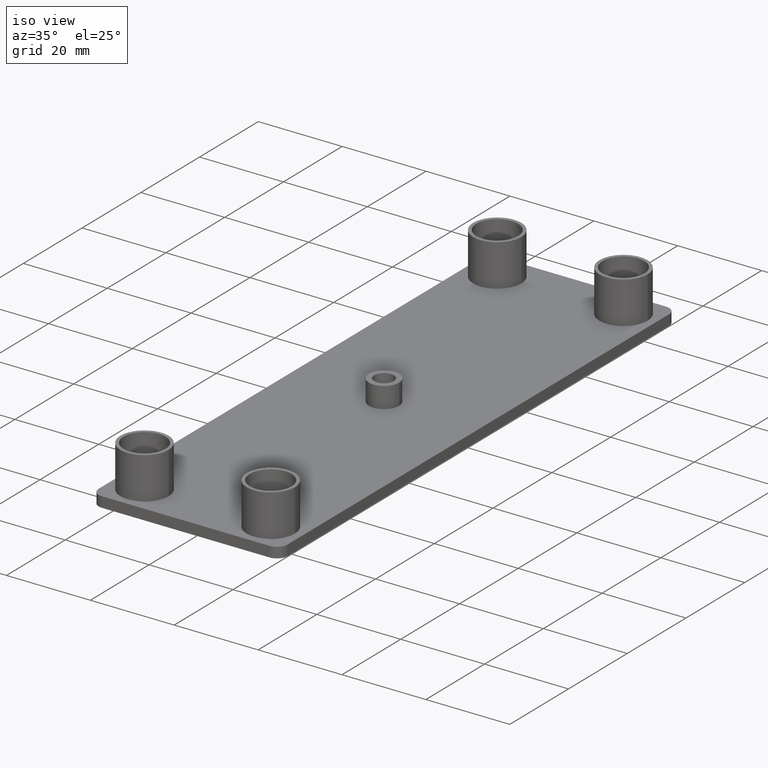
[diagram: clean part render]
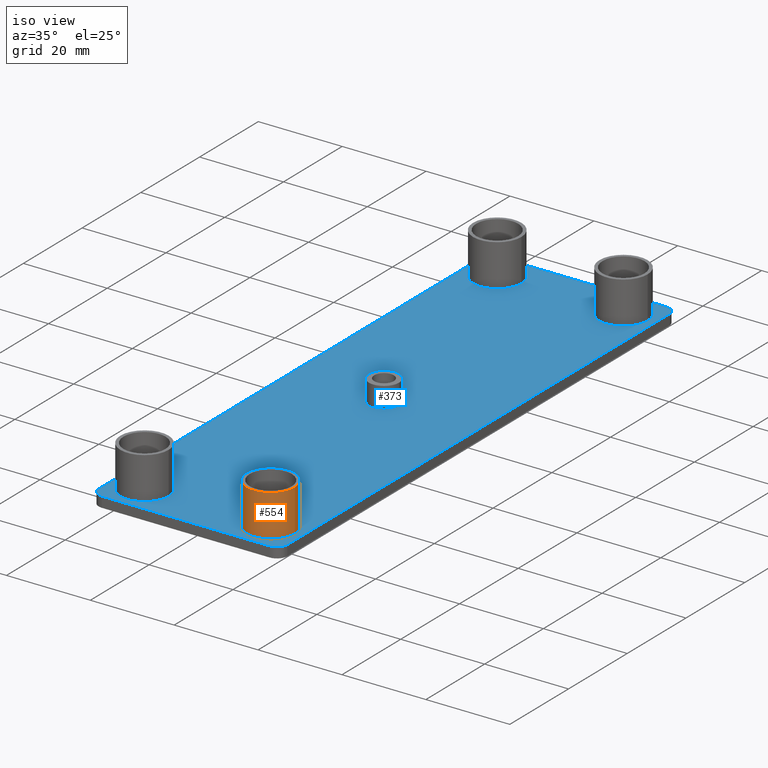
[diagram: same view with the hole feature highlighted: cylindrical wall and planar end face, labeled with their STEP entity ids]
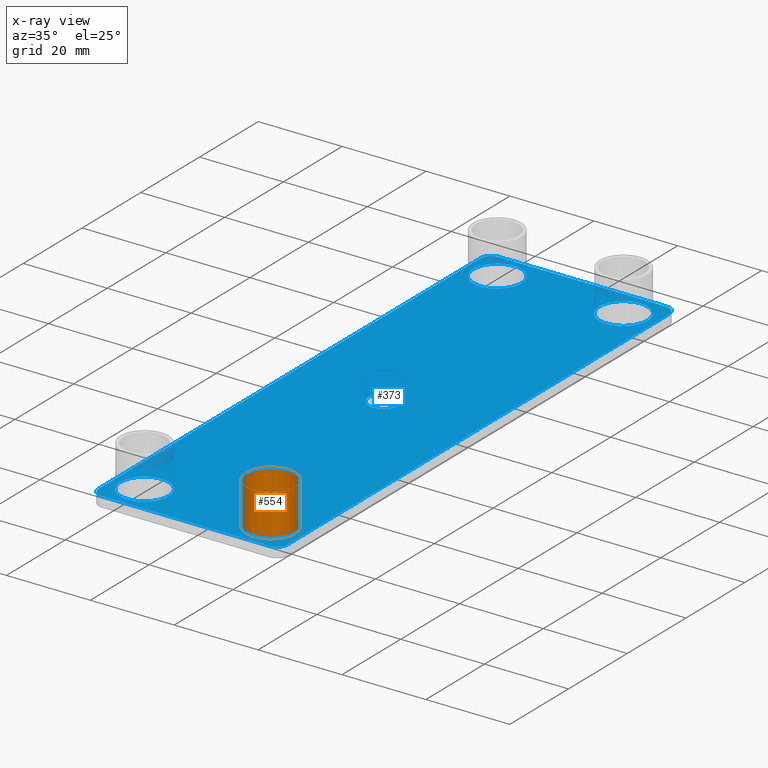
[diagram: x-ray of the same camera — body ghosted, the hole faces saturated]
A machine part, iso view. The highlighted faces form one hole feature of diameter 11.5 mm: the cylindrical wall (entity #554, orange) and its adjacent planar end face (entity #373, blue) — they share a circular edge in the B-rep.
The next image is the same camera in x-ray (body ghosted, the hole faces saturated) — the bore reads through the body.
Wall:
#273=CARTESIAN_POINT('',(9.300001333297395,-60.050044499759906,0.0));
#274=VERTEX_POINT('',#273);
#275=CARTESIAN_POINT('',(20.800001333251430,-60.050044499759906,0.0));
#276=VERTEX_POINT('',#275);
#277=CARTESIAN_POINT('',(15.050001333274395,-60.050044499759906,0.0));
#278=DIRECTION('',(0.0,0.0,1.0));
#279=DIRECTION('',(1.0,0.0,0.0));
#280=AXIS2_PLACEMENT_3D('',#277,#278,#279);
#281=CIRCLE('',#280,5.749999999977001);
#282=EDGE_CURVE('',#274,#276,#281,.T.);
#284=CARTESIAN_POINT('',(15.050001333274395,-60.050044499759906,0.0));
#285=DIRECTION('',(0.0,0.0,1.0));
#286=DIRECTION('',(1.0,0.0,0.0));
#287=AXIS2_PLACEMENT_3D('',#284,#285,#286);
#288=CIRCLE('',#287,5.749999999977001);
#289=EDGE_CURVE('',#276,#274,#288,.T.);
#520=CARTESIAN_POINT('',(15.050001333274395,-60.050044499759906,0.0));
#521=DIRECTION('',(0.0,0.0,1.0));
#522=DIRECTION('',(1.0,0.0,0.0));
#523=AXIS2_PLACEMENT_3D('',#520,#521,#522);
#524=CYLINDRICAL_SURFACE('',#523,5.749999999977001);
#525=CARTESIAN_POINT('',(9.300001333297395,-60.050044499759906,10.0));
#526=VERTEX_POINT('',#525);
#527=CARTESIAN_POINT('',(20.800001333251430,-60.050044499759906,10.0));
#528=VERTEX_POINT('',#527);
#529=CARTESIAN_POINT('',(15.050001333274395,-60.050044499759906,10.0));
#530=DIRECTION('',(0.0,0.0,1.0));
#531=DIRECTION('',(1.0,0.0,0.0));
#532=AXIS2_PLACEMENT_3D('',#529,#530,#531);
#533=CIRCLE('',#532,5.749999999977001);
#534=EDGE_CURVE('',#526,#528,#533,.T.);
#535=ORIENTED_EDGE('',*,*,#534,.F.);
#536=CARTESIAN_POINT('',(15.050001333274395,-60.050044499759906,10.0));
#537=DIRECTION('',(0.0,0.0,1.0));
#538=DIRECTION('',(1.0,0.0,0.0));
#539=AXIS2_PLACEMENT_3D('',#536,#537,#538);
#540=CIRCLE('',#539,5.749999999977001);
#541=EDGE_CURVE('',#528,#526,#540,.T.);
#542=ORIENTED_EDGE('',*,*,#541,.F.);
#543=CARTESIAN_POINT('',(20.800001333251430,-60.050044499759906,0.0));
#544=DIRECTION('',(0.0,0.0,1.0));
#545=VECTOR('',#544,10.0);
#546=LINE('',#543,#545);
#547=EDGE_CURVE('',#276,#528,#546,.T.);
#548=ORIENTED_EDGE('',*,*,#547,.F.);
#549=ORIENTED_EDGE('',*,*,#289,.T.);
#550=ORIENTED_EDGE('',*,*,#282,.T.);
#551=ORIENTED_EDGE('',*,*,#547,.T.);
#552=EDGE_LOOP('',(#535,#542,#548,#549,#550,#551));
#553=FACE_OUTER_BOUND('',#552,.T.);
#554=ADVANCED_FACE('',(#553),#524,.T.);
End face:
#7=CARTESIAN_POINT('',(-19.999953666585498,-67.499999499730166,0.0));
#8=VERTEX_POINT('',#7);
#25=CARTESIAN_POINT('',(20.000000333254548,-67.500000499730277,0.0));
#26=VERTEX_POINT('',#25);
#33=CARTESIAN_POINT('',(-19.999953666585498,-67.499999499730166,0.0));
#34=DIRECTION('',(1.000000000000000,-0.000000025000029,0.0));
#35=VECTOR('',#34,39.999953999840038);
#36=LINE('',#33,#35);
#37=EDGE_CURVE('',#8,#26,#36,.T.);
#57=CARTESIAN_POINT('',(22.500000333244770,-65.000000499740054,0.0));
#58=VERTEX_POINT('',#57);
#65=CARTESIAN_POINT('',(20.000000333254548,-65.000000499740281,0.0));
#66=DIRECTION('',(0.0,0.0,1.0));
#67=DIRECTION('',(1.0,0.0,0.0));
#68=AXIS2_PLACEMENT_3D('',#65,#66,#67);
#69=CIRCLE('',#68,2.499999999990000);
#70=EDGE_CURVE('',#26,#58,#69,.T.);
#89=CARTESIAN_POINT('',(22.499999666575377,65.000000499740054,0.0));
#90=VERTEX_POINT('',#89);
#97=CARTESIAN_POINT('',(22.500000333244696,-65.000000499739969,0.0));
#98=DIRECTION('',(-5.128225E-009,1.0,0.0));
#99=VECTOR('',#98,130.000000999480020);
#100=LINE('',#97,#99);
#101=EDGE_CURVE('',#58,#90,#100,.T.);
#121=CARTESIAN_POINT('',(19.999999666585381,67.500000499730049,0.0));
#122=VERTEX_POINT('',#121);
#129=CARTESIAN_POINT('',(19.999999666585381,65.000000499740054,0.0));
#130=DIRECTION('',(0.0,0.0,1.0));
#131=DIRECTION('',(1.0,0.0,0.0));
#132=AXIS2_PLACEMENT_3D('',#129,#130,#131);
#133=CIRCLE('',#132,2.499999999990000);
#134=EDGE_CURVE('',#90,#122,#133,.T.);
#153=CARTESIAN_POINT('',(-19.999956333254659,67.500000499730049,0.0));
#154=VERTEX_POINT('',#153);
#161=CARTESIAN_POINT('',(19.999999666585381,67.500000499730049,0.0));
#162=DIRECTION('',(-1.0,0.0,0.0));
#163=VECTOR('',#162,39.999955999840019);
#164=LINE('',#161,#163);
#165=EDGE_CURVE('',#122,#154,#164,.T.);
#185=CARTESIAN_POINT('',(-22.499956333244654,65.000000499740054,0.0));
#186=VERTEX_POINT('',#185);
#193=CARTESIAN_POINT('',(-19.999956333254659,65.000000499740054,0.0));
#194=DIRECTION('',(0.0,0.0,1.0));
#195=DIRECTION('',(1.0,0.0,0.0));
#196=AXIS2_PLACEMENT_3D('',#193,#194,#195);
#197=CIRCLE('',#196,2.499999999990000);
#198=EDGE_CURVE('',#154,#186,#197,.T.);
#217=CARTESIAN_POINT('',(-22.499953666575493,-64.999999499740170,0.0));
#218=VERTEX_POINT('',#217);
#225=CARTESIAN_POINT('',(-22.499956333244654,65.000000499740054,0.0));
#226=DIRECTION('',(0.000000020512841,-1.000000000000000,0.0));
#227=VECTOR('',#226,129.999999999480050);
#228=LINE('',#225,#227);
#229=EDGE_CURVE('',#186,#218,#228,.T.);
#248=CARTESIAN_POINT('',(-19.999953666585498,-64.999999499740170,0.0));
#249=DIRECTION('',(0.0,0.0,1.0));
#250=DIRECTION('',(1.0,0.0,0.0));
#251=AXIS2_PLACEMENT_3D('',#248,#249,#250);
#252=CIRCLE('',#251,2.499999999990000);
#253=EDGE_CURVE('',#218,#8,#252,.T.);
#258=CARTESIAN_POINT('',(-26.999956730030135,-81.000005329483884,0.0));
#259=DIRECTION('',(0.0,0.0,1.0));
#260=DIRECTION('',(1.0,0.0,0.0));
#261=AXIS2_PLACEMENT_3D('',#258,#259,#260);
#262=PLANE('',#261);
#263=ORIENTED_EDGE('',*,*,#37,.T.);
#264=ORIENTED_EDGE('',*,*,#70,.T.);
#265=ORIENTED_EDGE('',*,*,#101,.T.);
#266=ORIENTED_EDGE('',*,*,#134,.T.);
#267=ORIENTED_EDGE('',*,*,#165,.T.);
#268=ORIENTED_EDGE('',*,*,#198,.T.);
#269=ORIENTED_EDGE('',*,*,#229,.T.);
#270=ORIENTED_EDGE('',*,*,#253,.T.);
#271=EDGE_LOOP('',(#263,#264,#265,#266,#267,#268,#269,#270));
#272=FACE_OUTER_BOUND('',#271,.T.);
#273=CARTESIAN_POINT('',(9.300001333297395,-60.050044499759906,0.0));
#274=VERTEX_POINT('',#273);
#275=CARTESIAN_POINT('',(20.800001333251430,-60.050044499759906,0.0));
#276=VERTEX_POINT('',#275);
#277=CARTESIAN_POINT('',(15.050001333274395,-60.050044499759906,0.0));
#278=DIRECTION('',(0.0,0.0,1.0));
#279=DIRECTION('',(1.0,0.0,0.0));
#280=AXIS2_PLACEMENT_3D('',#277,#278,#279);
#281=CIRCLE('',#280,5.749999999977001);
#282=EDGE_CURVE('',#274,#276,#281,.T.);
#283=ORIENTED_EDGE('',*,*,#282,.F.);
#284=CARTESIAN_POINT('',(15.050001333274395,-60.050044499759906,0.0));
#285=DIRECTION('',(0.0,0.0,1.0));
#286=DIRECTION('',(1.0,0.0,0.0));
#287=AXIS2_PLACEMENT_3D('',#284,#285,#286);
#288=CIRCLE('',#287,5.749999999977001);
#289=EDGE_CURVE('',#276,#274,#288,.T.);
#290=ORIENTED_EDGE('',*,*,#289,.F.);
#291=EDGE_LOOP('',(#283,#290));
#292=FACE_BOUND('',#291,.T.);
#293=CARTESIAN_POINT('',(-20.799998666582233,-60.050044499759906,0.0));
#294=VERTEX_POINT('',#293);
#295=CARTESIAN_POINT('',(-9.299998666628198,-60.050044499759906,0.0));
#296=VERTEX_POINT('',#295);
#297=CARTESIAN_POINT('',(-15.049998666605234,-60.050044499759906,0.0));
#298=DIRECTION('',(0.0,0.0,1.0));
#299=DIRECTION('',(1.0,0.0,0.0));
#300=AXIS2_PLACEMENT_3D('',#297,#298,#299);
#301=CIRCLE('',#300,5.749999999977001);
#302=EDGE_CURVE('',#294,#296,#301,.T.);
#303=ORIENTED_EDGE('',*,*,#302,.F.);
#304=CARTESIAN_POINT('',(-15.049998666605234,-60.050044499759906,0.0));
#305=DIRECTION('',(0.0,0.0,1.0));
#306=DIRECTION('',(1.0,0.0,0.0));
#307=AXIS2_PLACEMENT_3D('',#304,#305,#306);
#308=CIRCLE('',#307,5.749999999977001);
#309=EDGE_CURVE('',#296,#294,#308,.T.);
#310=ORIENTED_EDGE('',*,*,#309,.F.);
#311=EDGE_LOOP('',(#303,#310));
#312=FACE_BOUND('',#311,.T.);
#313=CARTESIAN_POINT('',(9.299999666628118,60.050000499759790,0.0));
#314=VERTEX_POINT('',#313);
#315=CARTESIAN_POINT('',(20.799999666582153,60.050000499759790,0.0));
#316=VERTEX_POINT('',#315);
#317=CARTESIAN_POINT('',(15.049999666605117,60.050000499759790,0.0));
#318=DIRECTION('',(0.0,0.0,1.0));
#319=DIRECTION('',(1.0,0.0,0.0));
#320=AXIS2_PLACEMENT_3D('',#317,#318,#319);
#321=CIRCLE('',#320,5.749999999977001);
#322=EDGE_CURVE('',#314,#316,#321,.T.);
#323=ORIENTED_EDGE('',*,*,#322,.F.);
#324=CARTESIAN_POINT('',(15.049999666605117,60.050000499759790,0.0));
#325=DIRECTION('',(0.0,0.0,1.0));
#326=DIRECTION('',(1.0,0.0,0.0));
#327=AXIS2_PLACEMENT_3D('',#324,#325,#326);
#328=CIRCLE('',#327,5.749999999977001);
#329=EDGE_CURVE('',#316,#314,#328,.T.);
#330=ORIENTED_EDGE('',*,*,#329,.F.);
#331=EDGE_LOOP('',(#323,#330));
#332=FACE_BOUND('',#331,.T.);
#333=CARTESIAN_POINT('',(-20.800000333251511,60.050045499759563,0.0));
#334=VERTEX_POINT('',#333);
#335=CARTESIAN_POINT('',(-9.300000333297476,60.050045499759563,0.0));
#336=VERTEX_POINT('',#335);
#337=CARTESIAN_POINT('',(-15.050000333274511,60.050045499759563,0.0));
#338=DIRECTION('',(0.0,0.0,1.0));
#339=DIRECTION('',(1.0,0.0,0.0));
#340=AXIS2_PLACEMENT_3D('',#337,#338,#339);
#341=CIRCLE('',#340,5.749999999977001);
#342=EDGE_CURVE('',#334,#336,#341,.T.);
#343=ORIENTED_EDGE('',*,*,#342,.F.);
#344=CARTESIAN_POINT('',(-15.050000333274511,60.050045499759563,0.0));
#345=DIRECTION('',(0.0,0.0,1.0));
#346=DIRECTION('',(1.0,0.0,0.0));
#347=AXIS2_PLACEMENT_3D('',#344,#345,#346);
#348=CIRCLE('',#347,5.749999999977001);
#349=EDGE_CURVE('',#336,#334,#348,.T.);
#350=ORIENTED_EDGE('',*,*,#349,.F.);
#351=EDGE_LOOP('',(#343,#350));
#352=FACE_BOUND('',#351,.T.);
#353=CARTESIAN_POINT('',(-3.599999999985601,0.0,0.0));
#354=VERTEX_POINT('',#353);
#355=CARTESIAN_POINT('',(3.599999999985585,0.0,0.0));
#356=VERTEX_POINT('',#355);
#357=CARTESIAN_POINT('',(0.0,0.0,0.0));
#358=DIRECTION('',(0.0,0.0,1.0));
#359=DIRECTION('',(1.0,0.0,0.0));
#360=AXIS2_PLACEMENT_3D('',#357,#358,#359);
#361=CIRCLE('',#360,3.599999999985601);
#362=EDGE_CURVE('',#354,#356,#361,.T.);
#363=ORIENTED_EDGE('',*,*,#362,.F.);
#364=CARTESIAN_POINT('',(0.0,0.0,0.0));
#365=DIRECTION('',(0.0,0.0,1.0));
#366=DIRECTION('',(1.0,0.0,0.0));
#367=AXIS2_PLACEMENT_3D('',#364,#365,#366);
#368=CIRCLE('',#367,3.599999999985601);
#369=EDGE_CURVE('',#356,#354,#368,.T.);
#370=ORIENTED_EDGE('',*,*,#369,.F.);
#371=EDGE_LOOP('',(#363,#370));
#372=FACE_BOUND('',#371,.T.);
#373=ADVANCED_FACE('',(#272,#292,#312,#332,#352,#372),#262,.T.);